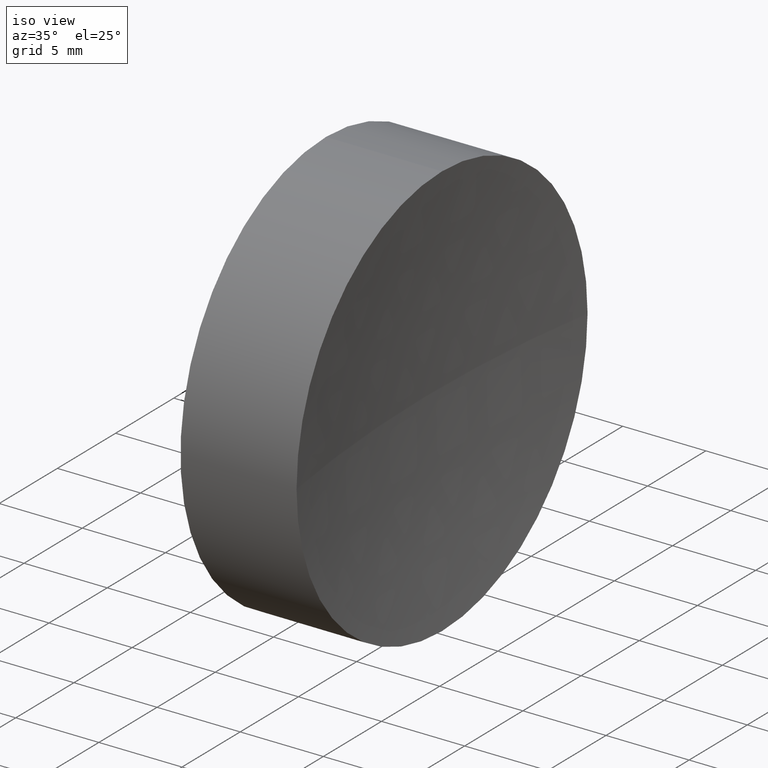
[diagram: clean part render]
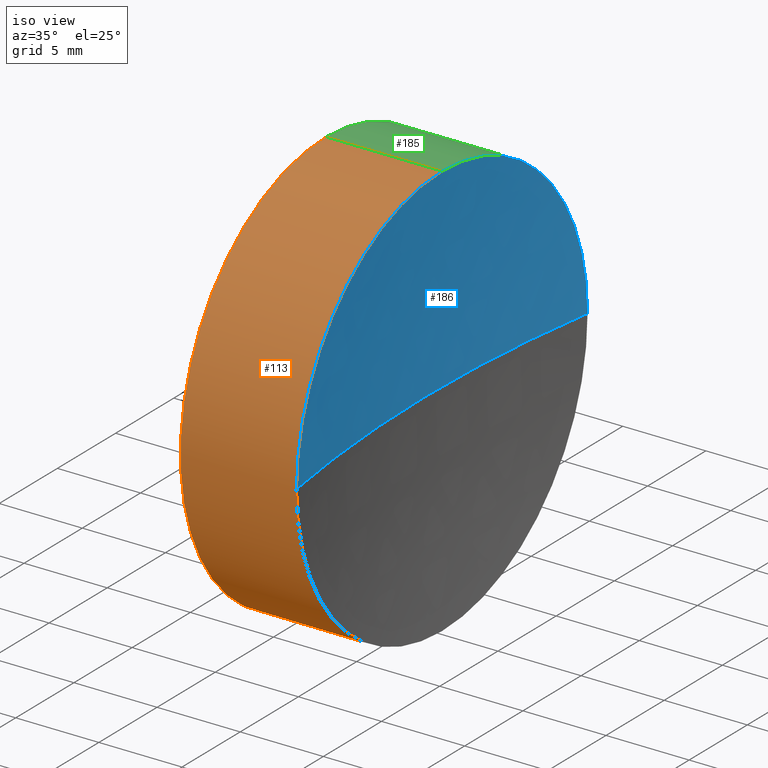
[diagram: same view with three faces highlighted in distinct colors, each labeled with its STEP entity id]
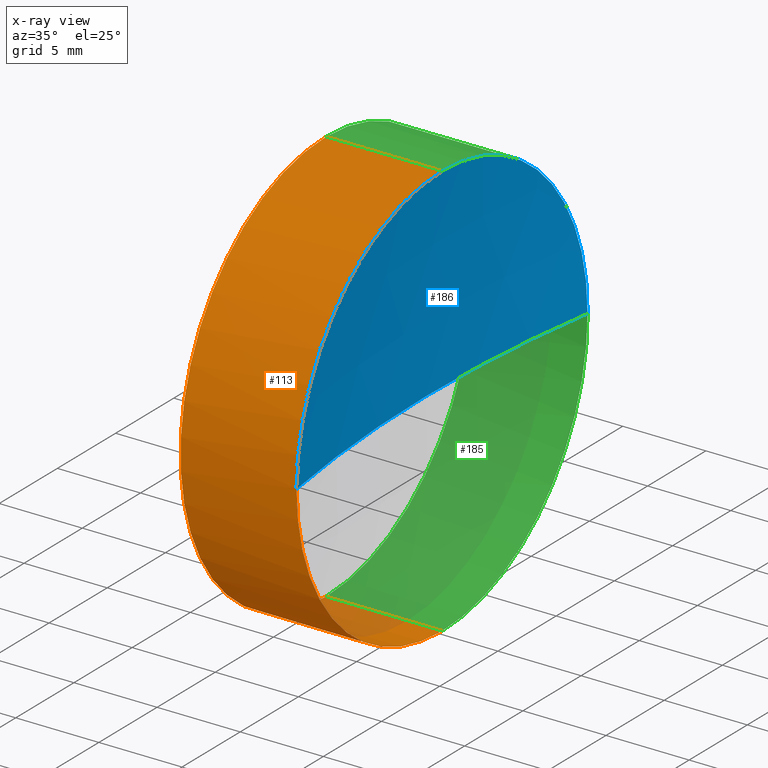
[diagram: x-ray of the same camera — body ghosted, the three highlighted faces saturated]
A machine part, iso view with three faces highlighted in distinct colors.
The next image is the same camera in x-ray (body ghosted, the three faces saturated) — at least one of them is partly hidden behind the body in this view.
Their STEP definitions:

[orange] entity #113 — the highlighted cylindrical surface (partial cylindrical patch) has radius 12.5 mm, axis along (-1, -0, -0).
#3 = DIRECTION ( 'NONE',  ( 0.0000000000000000000, 0.0000000000000000000, 1.000000000000000000 ) ) ;
#5 = FACE_OUTER_BOUND ( 'NONE', #115, .T. ) ;
#9 = CIRCLE ( 'NONE', #114, 12.49999999999999600 ) ;
#11 = EDGE_CURVE ( 'NONE', #26, #12, #9, .T. ) ;
#12 = VERTEX_POINT ( 'NONE', #31 ) ;
#15 = DIRECTION ( 'NONE',  ( -1.000000000000000000, -0.0000000000000000000, -0.0000000000000000000 ) ) ;
#26 = VERTEX_POINT ( 'NONE', #45 ) ;
#28 = CARTESIAN_POINT ( 'NONE',  ( 115.0926555349195200, 69.37802112337243400, 0.0000000000000000000 ) ) ;
#31 = CARTESIAN_POINT ( 'NONE',  ( 115.0926555349195200, 69.37802112337243400, 12.49999999999999600 ) ) ;
#34 = DIRECTION ( 'NONE',  ( -1.000000000000000000, -0.0000000000000000000, -0.0000000000000000000 ) ) ;
#35 = CARTESIAN_POINT ( 'NONE',  ( 122.0752660772947000, 69.37802112337243400, 0.0000000000000000000 ) ) ;
#40 = ORIENTED_EDGE ( 'NONE', *, *, #133, .T. ) ;
#42 = LINE ( 'NONE', #161, #146 ) ;
#45 = CARTESIAN_POINT ( 'NONE',  ( 115.0926555349195200, 69.37802112337243400, -12.49999999999999600 ) ) ;
#46 = CARTESIAN_POINT ( 'NONE',  ( 122.0752660772947000, 69.37802112337243400, 0.0000000000000000000 ) ) ;
#47 = DIRECTION ( 'NONE',  ( 0.0000000000000000000, 0.0000000000000000000, 1.000000000000000000 ) ) ;
#60 = CARTESIAN_POINT ( 'NONE',  ( 122.0752660772947000, 69.37802112337243400, -12.50000000000002500 ) ) ;
#61 = VERTEX_POINT ( 'NONE', #116 ) ;
#64 = AXIS2_PLACEMENT_3D ( 'NONE', #102, #34, #147 ) ;
#65 = DIRECTION ( 'NONE',  ( 0.0000000000000000000, 0.0000000000000000000, 1.000000000000000000 ) ) ;
#71 = AXIS2_PLACEMENT_3D ( 'NONE', #35, #103, #65 ) ;
#76 = CIRCLE ( 'NONE', #164, 12.50000000000002500 ) ;
#77 = CIRCLE ( 'NONE', #71, 12.50000000000002500 ) ;
#83 = VERTEX_POINT ( 'NONE', #179 ) ;
#86 = VERTEX_POINT ( 'NONE', #60 ) ;
#91 = CARTESIAN_POINT ( 'NONE',  ( 108.9851430021651000, 69.37802112337243400, -12.50000000000001100 ) ) ;
#92 = VECTOR ( 'NONE', #162, 1000.000000000000000 ) ;
#93 = ORIENTED_EDGE ( 'NONE', *, *, #11, .F. ) ;
#102 = CARTESIAN_POINT ( 'NONE',  ( 108.9851430021651000, 69.37802112337243400, 0.0000000000000000000 ) ) ;
#103 = DIRECTION ( 'NONE',  ( -1.000000000000000000, -0.0000000000000000000, -0.0000000000000000000 ) ) ;
#105 = DIRECTION ( 'NONE',  ( -1.000000000000000000, -0.0000000000000000000, -0.0000000000000000000 ) ) ;
#106 = EDGE_CURVE ( 'NONE', #83, #61, #76, .T. ) ;
#107 = LINE ( 'NONE', #91, #92 ) ;
#111 = EDGE_CURVE ( 'NONE', #86, #26, #107, .T. ) ;
#113 = ADVANCED_FACE ( 'NONE', ( #5 ), #172, .T. ) ;
#114 = AXIS2_PLACEMENT_3D ( 'NONE', #28, #15, #3 ) ;
#115 = EDGE_LOOP ( 'NONE', ( #129, #184, #165, #40, #93 ) ) ;
#116 = CARTESIAN_POINT ( 'NONE',  ( 122.0752660772947000, 69.37802112337243400, 12.50000000000002500 ) ) ;
#129 = ORIENTED_EDGE ( 'NONE', *, *, #111, .F. ) ;
#133 = EDGE_CURVE ( 'NONE', #61, #12, #42, .T. ) ;
#146 = VECTOR ( 'NONE', #105, 1000.000000000000000 ) ;
#147 = DIRECTION ( 'NONE',  ( 0.0000000000000000000, 0.0000000000000000000, 1.000000000000000000 ) ) ;
#157 = DIRECTION ( 'NONE',  ( -1.000000000000000000, -0.0000000000000000000, -0.0000000000000000000 ) ) ;
#160 = EDGE_CURVE ( 'NONE', #86, #83, #77, .T. ) ;
#161 = CARTESIAN_POINT ( 'NONE',  ( 108.9851430021651000, 69.37802112337243400, 12.50000000000001100 ) ) ;
#162 = DIRECTION ( 'NONE',  ( -1.000000000000000000, -0.0000000000000000000, -0.0000000000000000000 ) ) ;
#164 = AXIS2_PLACEMENT_3D ( 'NONE', #46, #157, #47 ) ;
#165 = ORIENTED_EDGE ( 'NONE', *, *, #106, .T. ) ;
#172 = CYLINDRICAL_SURFACE ( 'NONE', #64, 12.50000000000001100 ) ;
#179 = CARTESIAN_POINT ( 'NONE',  ( 122.0752660772947000, 56.87802112337242000, 0.0000000000000000000 ) ) ;
#184 = ORIENTED_EDGE ( 'NONE', *, *, #160, .T. ) ;

[blue] entity #186 — the highlighted spherical surface has radius 80 mm.
#6 = CARTESIAN_POINT ( 'NONE',  ( 122.0752660772947000, 81.87802112337247700, 1.530808498934193900E-015 ) ) ;
#17 = EDGE_CURVE ( 'NONE', #83, #74, #54, .T. ) ;
#20 = EDGE_CURVE ( 'NONE', #182, #74, #51, .T. ) ;
#22 = FACE_OUTER_BOUND ( 'NONE', #82, .T. ) ;
#25 = ORIENTED_EDGE ( 'NONE', *, *, #106, .F. ) ;
#29 = AXIS2_PLACEMENT_3D ( 'NONE', #48, #144, #67 ) ;
#37 = DIRECTION ( 'NONE',  ( -1.000000000000000000, -0.0000000000000000000, -0.0000000000000000000 ) ) ;
#43 = AXIS2_PLACEMENT_3D ( 'NONE', #148, #108, #149 ) ;
#46 = CARTESIAN_POINT ( 'NONE',  ( 122.0752660772947000, 69.37802112337243400, 0.0000000000000000000 ) ) ;
#47 = DIRECTION ( 'NONE',  ( 0.0000000000000000000, 0.0000000000000000000, 1.000000000000000000 ) ) ;
#48 = CARTESIAN_POINT ( 'NONE',  ( 201.0926692236902200, 69.37802112337246300, 0.0000000000000000000 ) ) ;
#49 = AXIS2_PLACEMENT_3D ( 'NONE', #125, #84, #176 ) ;
#51 = CIRCLE ( 'NONE', #29, 80.00000000000000000 ) ;
#52 = CARTESIAN_POINT ( 'NONE',  ( 122.0752660772947000, 69.37802112337243400, 0.0000000000000000000 ) ) ;
#54 = CIRCLE ( 'NONE', #49, 80.00000000000000000 ) ;
#61 = VERTEX_POINT ( 'NONE', #116 ) ;
#67 = DIRECTION ( 'NONE',  ( 0.0000000000000000000, -1.000000000000000000, -1.224646799147353200E-016 ) ) ;
#74 = VERTEX_POINT ( 'NONE', #127 ) ;
#76 = CIRCLE ( 'NONE', #164, 12.50000000000002500 ) ;
#82 = EDGE_LOOP ( 'NONE', ( #122, #177, #25, #138 ) ) ;
#83 = VERTEX_POINT ( 'NONE', #179 ) ;
#84 = DIRECTION ( 'NONE',  ( 0.0000000000000000000, 0.0000000000000000000, -1.000000000000000000 ) ) ;
#100 = AXIS2_PLACEMENT_3D ( 'NONE', #52, #37, #135 ) ;
#106 = EDGE_CURVE ( 'NONE', #83, #61, #76, .T. ) ;
#108 = DIRECTION ( 'NONE',  ( 0.0000000000000000000, 0.0000000000000000000, 1.000000000000000000 ) ) ;
#116 = CARTESIAN_POINT ( 'NONE',  ( 122.0752660772947000, 69.37802112337243400, 12.50000000000002500 ) ) ;
#122 = ORIENTED_EDGE ( 'NONE', *, *, #20, .F. ) ;
#125 = CARTESIAN_POINT ( 'NONE',  ( 201.0926692236902200, 69.37802112337246300, 0.0000000000000000000 ) ) ;
#127 = CARTESIAN_POINT ( 'NONE',  ( 121.0926692236902400, 69.37802112337246300, 0.0000000000000000000 ) ) ;
#132 = CIRCLE ( 'NONE', #100, 12.50000000000002500 ) ;
#135 = DIRECTION ( 'NONE',  ( 0.0000000000000000000, 0.0000000000000000000, 1.000000000000000000 ) ) ;
#138 = ORIENTED_EDGE ( 'NONE', *, *, #17, .T. ) ;
#144 = DIRECTION ( 'NONE',  ( 0.0000000000000000000, -1.224646799147353200E-016, 1.000000000000000000 ) ) ;
#148 = CARTESIAN_POINT ( 'NONE',  ( 201.0926692236902200, 69.37802112337246300, 0.0000000000000000000 ) ) ;
#149 = DIRECTION ( 'NONE',  ( 0.0000000000000000000, -1.000000000000000000, 0.0000000000000000000 ) ) ;
#157 = DIRECTION ( 'NONE',  ( -1.000000000000000000, -0.0000000000000000000, -0.0000000000000000000 ) ) ;
#164 = AXIS2_PLACEMENT_3D ( 'NONE', #46, #157, #47 ) ;
#167 = SPHERICAL_SURFACE ( 'NONE', #43, 80.00000000000000000 ) ;
#169 = EDGE_CURVE ( 'NONE', #61, #182, #132, .T. ) ;
#176 = DIRECTION ( 'NONE',  ( -1.000000000000000000, 0.0000000000000000000, 0.0000000000000000000 ) ) ;
#177 = ORIENTED_EDGE ( 'NONE', *, *, #169, .F. ) ;
#179 = CARTESIAN_POINT ( 'NONE',  ( 122.0752660772947000, 56.87802112337242000, 0.0000000000000000000 ) ) ;
#182 = VERTEX_POINT ( 'NONE', #6 ) ;
#186 = ADVANCED_FACE ( 'NONE', ( #22 ), #167, .F. ) ;

[green] entity #185 — the highlighted cylindrical surface (partial cylindrical patch) has radius 12.5 mm, axis along (-1, -0, -0).
#6 = CARTESIAN_POINT ( 'NONE',  ( 122.0752660772947000, 81.87802112337247700, 1.530808498934193900E-015 ) ) ;
#12 = VERTEX_POINT ( 'NONE', #31 ) ;
#13 = CIRCLE ( 'NONE', #166, 12.50000000000002500 ) ;
#18 = DIRECTION ( 'NONE',  ( 0.0000000000000000000, 0.0000000000000000000, 1.000000000000000000 ) ) ;
#19 = DIRECTION ( 'NONE',  ( -1.000000000000000000, -0.0000000000000000000, -0.0000000000000000000 ) ) ;
#21 = CARTESIAN_POINT ( 'NONE',  ( 122.0752660772947000, 69.37802112337243400, 0.0000000000000000000 ) ) ;
#23 = DIRECTION ( 'NONE',  ( -1.000000000000000000, -0.0000000000000000000, -0.0000000000000000000 ) ) ;
#26 = VERTEX_POINT ( 'NONE', #45 ) ;
#31 = CARTESIAN_POINT ( 'NONE',  ( 115.0926555349195200, 69.37802112337243400, 12.49999999999999600 ) ) ;
#32 = ORIENTED_EDGE ( 'NONE', *, *, #111, .T. ) ;
#37 = DIRECTION ( 'NONE',  ( -1.000000000000000000, -0.0000000000000000000, -0.0000000000000000000 ) ) ;
#38 = EDGE_CURVE ( 'NONE', #182, #86, #13, .T. ) ;
#42 = LINE ( 'NONE', #161, #146 ) ;
#45 = CARTESIAN_POINT ( 'NONE',  ( 115.0926555349195200, 69.37802112337243400, -12.49999999999999600 ) ) ;
#52 = CARTESIAN_POINT ( 'NONE',  ( 122.0752660772947000, 69.37802112337243400, 0.0000000000000000000 ) ) ;
#58 = FACE_OUTER_BOUND ( 'NONE', #159, .T. ) ;
#60 = CARTESIAN_POINT ( 'NONE',  ( 122.0752660772947000, 69.37802112337243400, -12.50000000000002500 ) ) ;
#61 = VERTEX_POINT ( 'NONE', #116 ) ;
#63 = CARTESIAN_POINT ( 'NONE',  ( 115.0926555349195200, 69.37802112337243400, 0.0000000000000000000 ) ) ;
#80 = DIRECTION ( 'NONE',  ( -1.000000000000000000, -0.0000000000000000000, -0.0000000000000000000 ) ) ;
#85 = DIRECTION ( 'NONE',  ( 0.0000000000000000000, 0.0000000000000000000, 1.000000000000000000 ) ) ;
#86 = VERTEX_POINT ( 'NONE', #60 ) ;
#91 = CARTESIAN_POINT ( 'NONE',  ( 108.9851430021651000, 69.37802112337243400, -12.50000000000001100 ) ) ;
#92 = VECTOR ( 'NONE', #162, 1000.000000000000000 ) ;
#98 = CARTESIAN_POINT ( 'NONE',  ( 108.9851430021651000, 69.37802112337243400, 0.0000000000000000000 ) ) ;
#99 = CYLINDRICAL_SURFACE ( 'NONE', #150, 12.50000000000001100 ) ;
#100 = AXIS2_PLACEMENT_3D ( 'NONE', #52, #37, #135 ) ;
#105 = DIRECTION ( 'NONE',  ( -1.000000000000000000, -0.0000000000000000000, -0.0000000000000000000 ) ) ;
#107 = LINE ( 'NONE', #91, #92 ) ;
#109 = CIRCLE ( 'NONE', #139, 12.49999999999999600 ) ;
#111 = EDGE_CURVE ( 'NONE', #86, #26, #107, .T. ) ;
#116 = CARTESIAN_POINT ( 'NONE',  ( 122.0752660772947000, 69.37802112337243400, 12.50000000000002500 ) ) ;
#130 = ORIENTED_EDGE ( 'NONE', *, *, #169, .T. ) ;
#132 = CIRCLE ( 'NONE', #100, 12.50000000000002500 ) ;
#133 = EDGE_CURVE ( 'NONE', #61, #12, #42, .T. ) ;
#135 = DIRECTION ( 'NONE',  ( 0.0000000000000000000, 0.0000000000000000000, 1.000000000000000000 ) ) ;
#137 = EDGE_CURVE ( 'NONE', #12, #26, #109, .T. ) ;
#139 = AXIS2_PLACEMENT_3D ( 'NONE', #63, #80, #175 ) ;
#140 = ORIENTED_EDGE ( 'NONE', *, *, #38, .T. ) ;
#146 = VECTOR ( 'NONE', #105, 1000.000000000000000 ) ;
#150 = AXIS2_PLACEMENT_3D ( 'NONE', #98, #23, #85 ) ;
#151 = ORIENTED_EDGE ( 'NONE', *, *, #137, .F. ) ;
#159 = EDGE_LOOP ( 'NONE', ( #140, #32, #151, #168, #130 ) ) ;
#161 = CARTESIAN_POINT ( 'NONE',  ( 108.9851430021651000, 69.37802112337243400, 12.50000000000001100 ) ) ;
#162 = DIRECTION ( 'NONE',  ( -1.000000000000000000, -0.0000000000000000000, -0.0000000000000000000 ) ) ;
#166 = AXIS2_PLACEMENT_3D ( 'NONE', #21, #19, #18 ) ;
#168 = ORIENTED_EDGE ( 'NONE', *, *, #133, .F. ) ;
#169 = EDGE_CURVE ( 'NONE', #61, #182, #132, .T. ) ;
#175 = DIRECTION ( 'NONE',  ( 0.0000000000000000000, 0.0000000000000000000, 1.000000000000000000 ) ) ;
#182 = VERTEX_POINT ( 'NONE', #6 ) ;
#185 = ADVANCED_FACE ( 'NONE', ( #58 ), #99, .T. ) ;